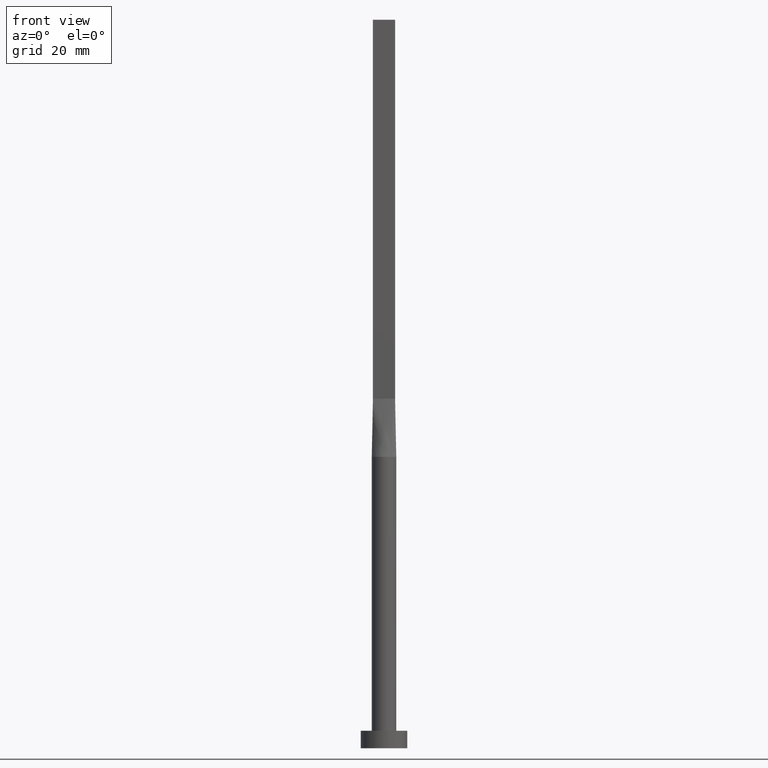
[diagram: clean part render]
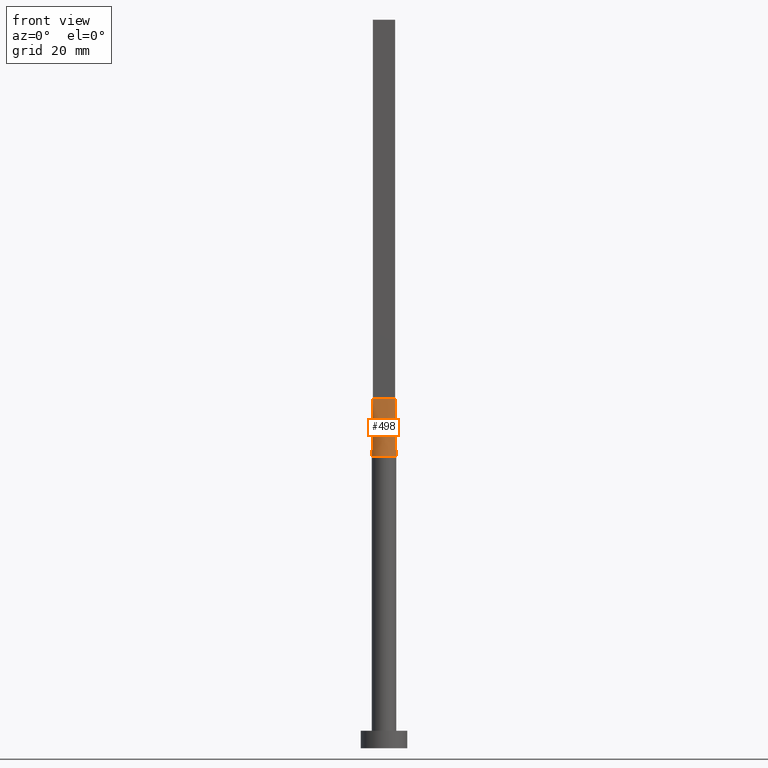
[diagram: same view with one face highlighted and labeled with its STEP entity id]
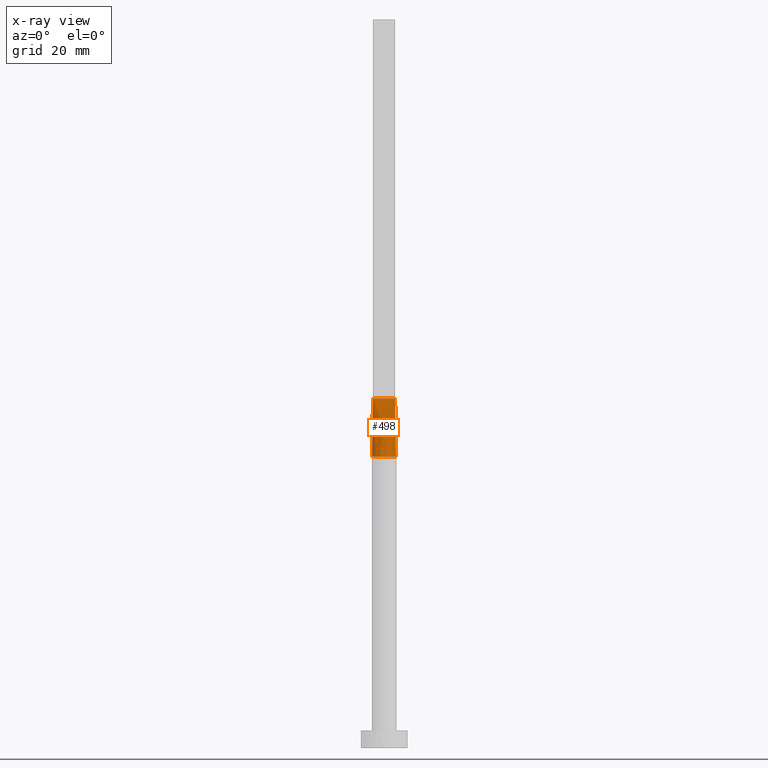
[diagram: x-ray of the same camera — body ghosted, the highlighted face saturated]
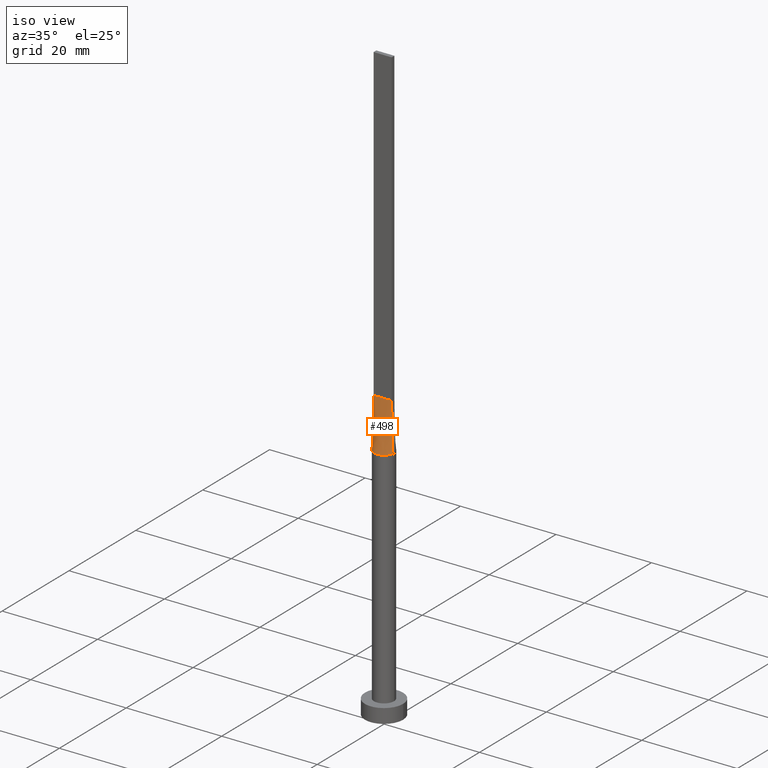
[diagram: same view with one face highlighted and labeled with its STEP entity id]
A machine part, front view. The second image highlights one B-rep face of the part: STEP entity #498.
The next image is the same camera in x-ray: the body ghosted, the highlighted face saturated — about 0% of this face is hidden behind the body in this view.
A second angle (iso view) of the same face is appended — the face is thin or edge-on in the first view.
In plain terms, the highlighted face is a freeform B-spline surface patch.
Its self-contained STEP definition (entity closure, byte-faithful):
#3 = CARTESIAN_POINT ( 'NONE',  ( 0.5670887265440289760, -2.040296735810464668, 50.00000000000000000 ) ) ;
#10 = CARTESIAN_POINT ( 'NONE',  ( -1.977477274236086657, -0.4163110051023335423, 55.00000000000000711 ) ) ;
#34 = VERTEX_POINT ( 'NONE', #269 ) ;
#43 = CARTESIAN_POINT ( 'NONE',  ( 1.977477274236086213, -0.4163110051023340419, 55.00000000000000711 ) ) ;
#55 = VECTOR ( 'NONE', #476, 1000.000000000000000 ) ;
#74 = CARTESIAN_POINT ( 'NONE',  ( 1.266666666666666385, -0.3999999999999997446, 60.00000000000000000 ) ) ;
#79 = ORIENTED_EDGE ( 'NONE', *, *, #419, .T. ) ;
#88 = CARTESIAN_POINT ( 'NONE',  ( 1.638039177766651200, -1.336522195786985279, 50.00000000000000711 ) ) ;
#93 = VERTEX_POINT ( 'NONE', #406 ) ;
#96 = VECTOR ( 'NONE', #261, 1000.000000000000227 ) ;
#103 = CARTESIAN_POINT ( 'NONE',  ( -0.5670887265440306413, -2.040296735810464668, 50.00000000000001421 ) ) ;
#115 = VERTEX_POINT ( 'NONE', #422 ) ;
#122 = CARTESIAN_POINT ( 'NONE',  ( 1.960396204527856234, -0.7808940436533445828, 50.00000000000000711 ) ) ;
#131 = AXIS2_PLACEMENT_3D ( 'NONE', #264, #228, #186 ) ;
#142 = CARTESIAN_POINT ( 'NONE',  ( -1.583333333333332371, -0.3999999999999995226, 60.00000000000000000 ) ) ;
#149 = CARTESIAN_POINT ( 'NONE',  ( -1.069497409764672113, -1.827724181718571650, 50.00000000000000711 ) ) ;
#154 = VECTOR ( 'NONE', #373, 1000.000000000000227 ) ;
#169 = CARTESIAN_POINT ( 'NONE',  ( 1.769939800381043815, -1.149026496286140731, 50.00000000000000711 ) ) ;
#172 = CARTESIAN_POINT ( 'NONE',  ( 1.288188016604683739, -1.676316068528189263, 50.00000000000001421 ) ) ;
#183 = EDGE_CURVE ( 'NONE', #93, #34, #550, .T. ) ;
#185 = CARTESIAN_POINT ( 'NONE',  ( -1.288188016604684627, -1.676316068528187930, 50.00000000000000711 ) ) ;
#186 = DIRECTION ( 'NONE',  ( 1.000000000000000000, 0.000000000000000000, 0.000000000000000000 ) ) ;
#192 = CARTESIAN_POINT ( 'NONE',  ( -2.019676033883314403, -0.6001949545017496446, 50.00000000000000711 ) ) ;
#214 = CARTESIAN_POINT ( 'NONE',  ( 0.7916666666666671848, -0.3999999999999997446, 60.00000000000000000 ) ) ;
#220 = CARTESIAN_POINT ( 'NONE',  ( 0.6333333333333341919, -0.3999999999999997446, 60.00000000000000000 ) ) ;
#227 = CARTESIAN_POINT ( 'NONE',  ( -0.1583333333333321602, -0.3999999999999996336, 60.00000000000000000 ) ) ;
#228 = DIRECTION ( 'NONE',  ( 0.000000000000000000, 0.000000000000000000, 1.000000000000000000 ) ) ;
#245 = CARTESIAN_POINT ( 'NONE',  ( 2.055161022591414977, -0.4326655822303633325, 50.00000000000000000 ) ) ;
#254 = LINE ( 'NONE', #43, #96 ) ;
#258 = ORIENTED_EDGE ( 'NONE', *, *, #538, .T. ) ;
#261 = DIRECTION ( 'NONE',  ( -0.01549351246150994753, 0.003261792097160015180, 0.9998746480354023802 ) ) ;
#264 = CARTESIAN_POINT ( 'NONE',  ( 0.000000000000000000, 0.000000000000000000, 50.00000000000000000 ) ) ;
#265 = CARTESIAN_POINT ( 'NONE',  ( 1.108333333333333393, -0.3999999999999997446, 60.00000000000000000 ) ) ;
#269 = CARTESIAN_POINT ( 'NONE',  ( -2.055145036631130129, -0.4326623253166036465, 50.00000000000000000 ) ) ;
#272 = CIRCLE ( 'NONE', #131, 2.100000000000000089 ) ;
#273 = CARTESIAN_POINT ( 'NONE',  ( -1.741666666666666252, -0.3999999999999995226, 60.00000000000000000 ) ) ;
#281 = CARTESIAN_POINT ( 'NONE',  ( 0.2839879338753495963, -2.100000000000000533, 50.00000000000001421 ) ) ;
#292 = EDGE_CURVE ( 'NONE', #93, #115, #458, .T. ) ;
#294 = CARTESIAN_POINT ( 'NONE',  ( -1.899999999999999911, -0.3999999999999995781, 60.00000000000000711 ) ) ;
#304 = CARTESIAN_POINT ( 'NONE',  ( 2.054954548472172959, -0.4326220102046682281, 50.00000000000000000 ) ) ;
#306 = ORIENTED_EDGE ( 'NONE', *, *, #292, .F. ) ;
#309 = VERTEX_POINT ( 'NONE', #245 ) ;
#315 = EDGE_LOOP ( 'NONE', ( #79, #258, #306, #579 ) ) ;
#320 = CARTESIAN_POINT ( 'NONE',  ( 1.069497409764670115, -1.827724181718573204, 50.00000000000000711 ) ) ;
#322 = CARTESIAN_POINT ( 'NONE',  ( -1.769939800381044481, -1.149026496286139176, 49.99999999999999289 ) ) ;
#325 = CARTESIAN_POINT ( 'NONE',  ( -0.6333333333333318604, -0.3999999999999996336, 60.00000000000000000 ) ) ;
#350 = CARTESIAN_POINT ( 'NONE',  ( 1.899999999999999023, -0.3999999999999998002, 60.00000000000000711 ) ) ;
#359 = CARTESIAN_POINT ( 'NONE',  ( -0.3166666666666653196, -0.3999999999999996336, 60.00000000000000000 ) ) ;
#366 = CARTESIAN_POINT ( 'NONE',  ( -2.054954548472173403, -0.4326220102046674509, 50.00000000000000000 ) ) ;
#369 = B_SPLINE_SURFACE_WITH_KNOTS ( 'NONE', 3, 1, ( 
 ( #366, #410 ),
 ( #192, #273 ),
 ( #503, #142 ),
 ( #322, #548 ),
 ( #407, #454 ),
 ( #185, #505 ),
 ( #149, #325 ),
 ( #103, #359 ),
 ( #508, #227 ),
 ( #281, #466 ),
 ( #3, #543 ),
 ( #320, #220 ),
 ( #172, #214 ),
 ( #88, #265 ),
 ( #169, #74 ),
 ( #122, #531 ),
 ( #401, #433 ),
 ( #304, #350 ) ),
 .UNSPECIFIED., .F., .F., .F.,
 ( 4, 2, 2, 2, 2, 2, 2, 2, 4 ),
 ( 2, 2 ),
 ( 0.000000000000000000, 0.1250000000000000833, 0.2500000000000001110, 0.3750000000000001110, 0.5000000000000001110, 0.6250000000000001110, 0.7500000000000000000, 0.8750000000000000000, 1.000000000000000000 ),
 ( 0.000000000000000000, 1.000000000000000000 ),
 .UNSPECIFIED. ) ;
#373 = DIRECTION ( 'NONE',  ( -0.01549351246150990416, -0.003261792097159956199, -0.9998746480354023802 ) ) ;
#401 = CARTESIAN_POINT ( 'NONE',  ( 2.019676033883313071, -0.6001949545017514209, 50.00000000000000711 ) ) ;
#406 = CARTESIAN_POINT ( 'NONE',  ( -1.899999999999999911, -0.3999999999999995781, 60.00000000000000711 ) ) ;
#407 = CARTESIAN_POINT ( 'NONE',  ( -1.638039177766652310, -1.336522195786983724, 49.99999999999999289 ) ) ;
#410 = CARTESIAN_POINT ( 'NONE',  ( -1.899999999999999911, -0.3999999999999995781, 60.00000000000000711 ) ) ;
#419 = EDGE_CURVE ( 'NONE', #34, #309, #272, .T. ) ;
#422 = CARTESIAN_POINT ( 'NONE',  ( 1.899999999999999023, -0.3999999999999998002, 60.00000000000000711 ) ) ;
#433 = CARTESIAN_POINT ( 'NONE',  ( 1.741666666666666030, -0.3999999999999997446, 60.00000000000000000 ) ) ;
#454 = CARTESIAN_POINT ( 'NONE',  ( -1.108333333333332060, -0.3999999999999995781, 60.00000000000000000 ) ) ;
#458 = LINE ( 'NONE', #294, #55 ) ;
#466 = CARTESIAN_POINT ( 'NONE',  ( 0.1583333333333343806, -0.3999999999999996336, 60.00000000000000000 ) ) ;
#476 = DIRECTION ( 'NONE',  ( 1.000000000000000000, -5.706327223607918787E-17, 0.000000000000000000 ) ) ;
#498 = ADVANCED_FACE ( 'NONE', ( #500 ), #369, .T. ) ;
#500 = FACE_OUTER_BOUND ( 'NONE', #315, .T. ) ;
#503 = CARTESIAN_POINT ( 'NONE',  ( -1.960396204527856456, -0.7808940436533431395, 50.00000000000000000 ) ) ;
#505 = CARTESIAN_POINT ( 'NONE',  ( -0.7916666666666652974, -0.3999999999999996336, 60.00000000000000000 ) ) ;
#508 = CARTESIAN_POINT ( 'NONE',  ( -0.2839879338753514282, -2.100000000000000533, 50.00000000000000711 ) ) ;
#531 = CARTESIAN_POINT ( 'NONE',  ( 1.583333333333332815, -0.3999999999999997446, 60.00000000000000000 ) ) ;
#538 = EDGE_CURVE ( 'NONE', #309, #115, #254, .T. ) ;
#543 = CARTESIAN_POINT ( 'NONE',  ( 0.3166666666666677066, -0.3999999999999996891, 60.00000000000000000 ) ) ;
#548 = CARTESIAN_POINT ( 'NONE',  ( -1.266666666666665497, -0.3999999999999995226, 60.00000000000000000 ) ) ;
#550 = LINE ( 'NONE', #10, #154 ) ;
#579 = ORIENTED_EDGE ( 'NONE', *, *, #183, .T. ) ;